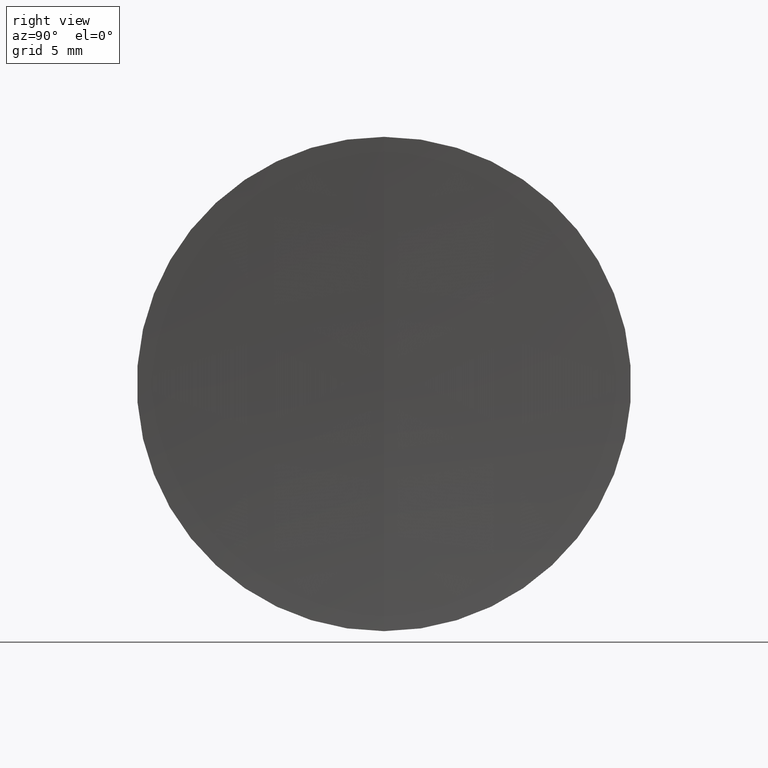
[diagram: clean part render]
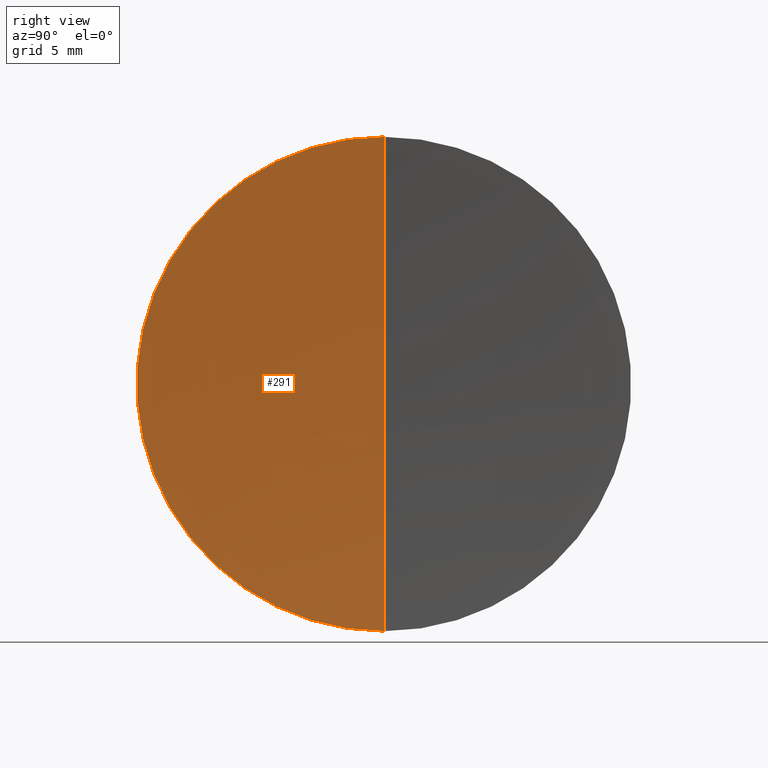
[diagram: same view with one face highlighted and labeled with its STEP entity id]
A machine part, right view. The second image highlights one B-rep face of the part: STEP entity #291.
In plain terms, the highlighted spherical surface has radius 194.54 mm.
Its self-contained STEP definition (entity closure, byte-faithful):
#25 = SPHERICAL_SURFACE ( 'NONE', #165, 194.5400000000001100 ) ;
#45 = AXIS2_PLACEMENT_3D ( 'NONE', #259, #185, #327 ) ;
#61 = CARTESIAN_POINT ( 'NONE',  ( 237.2993737972109900, 0.0000000000000000000, 0.0000000000000000000 ) ) ;
#70 = CARTESIAN_POINT ( 'NONE',  ( 43.17435840764294100, -1.555301434917158400E-015, 12.70000000000016300 ) ) ;
#75 = CARTESIAN_POINT ( 'NONE',  ( 42.75937379721089800, 0.0000000000000000000, -1.191213941530631000E-014 ) ) ;
#77 = VERTEX_POINT ( 'NONE', #70 ) ;
#87 = DIRECTION ( 'NONE',  ( 0.0000000000000000000, -1.000000000000000000, -1.224646799147353200E-016 ) ) ;
#90 = CARTESIAN_POINT ( 'NONE',  ( 237.2993737972109900, 0.0000000000000000000, 0.0000000000000000000 ) ) ;
#94 = EDGE_LOOP ( 'NONE', ( #333, #268, #187 ) ) ;
#108 = VERTEX_POINT ( 'NONE', #75 ) ;
#127 = DIRECTION ( 'NONE',  ( 0.0000000000000000000, 0.0000000000000000000, 1.000000000000000000 ) ) ;
#131 = DIRECTION ( 'NONE',  ( 0.0000000000000000000, 1.224646799147353200E-016, -1.000000000000000000 ) ) ;
#164 = EDGE_CURVE ( 'NONE', #255, #108, #278, .T. ) ;
#165 = AXIS2_PLACEMENT_3D ( 'NONE', #230, #246, #214 ) ;
#184 = EDGE_CURVE ( 'NONE', #255, #77, #251, .T. ) ;
#185 = DIRECTION ( 'NONE',  ( -1.000000000000000000, -0.0000000000000000000, -0.0000000000000000000 ) ) ;
#187 = ORIENTED_EDGE ( 'NONE', *, *, #164, .T. ) ;
#205 = AXIS2_PLACEMENT_3D ( 'NONE', #90, #87, #131 ) ;
#214 = DIRECTION ( 'NONE',  ( 0.0000000000000000000, 0.0000000000000000000, -1.000000000000000000 ) ) ;
#217 = AXIS2_PLACEMENT_3D ( 'NONE', #61, #309, #127 ) ;
#230 = CARTESIAN_POINT ( 'NONE',  ( 237.2993737972109900, 0.0000000000000000000, 0.0000000000000000000 ) ) ;
#246 = DIRECTION ( 'NONE',  ( -0.0000000000000000000, -1.000000000000000000, -0.0000000000000000000 ) ) ;
#251 = CIRCLE ( 'NONE', #45, 12.69999999999999600 ) ;
#255 = VERTEX_POINT ( 'NONE', #335 ) ;
#259 = CARTESIAN_POINT ( 'NONE',  ( 43.17435840764293400, 0.0000000000000000000, 0.0000000000000000000 ) ) ;
#268 = ORIENTED_EDGE ( 'NONE', *, *, #184, .F. ) ;
#275 = CIRCLE ( 'NONE', #205, 194.5400000000001100 ) ;
#278 = CIRCLE ( 'NONE', #217, 194.5400000000001100 ) ;
#288 = FACE_OUTER_BOUND ( 'NONE', #94, .T. ) ;
#291 = ADVANCED_FACE ( 'NONE', ( #288 ), #25, .F. ) ;
#309 = DIRECTION ( 'NONE',  ( 0.0000000000000000000, 1.000000000000000000, -0.0000000000000000000 ) ) ;
#323 = EDGE_CURVE ( 'NONE', #77, #108, #275, .T. ) ;
#327 = DIRECTION ( 'NONE',  ( 0.0000000000000000000, 0.0000000000000000000, 1.000000000000000000 ) ) ;
#333 = ORIENTED_EDGE ( 'NONE', *, *, #323, .F. ) ;
#335 = CARTESIAN_POINT ( 'NONE',  ( 43.17435840764294100, 0.0000000000000000000, -12.70000000000016300 ) ) ;